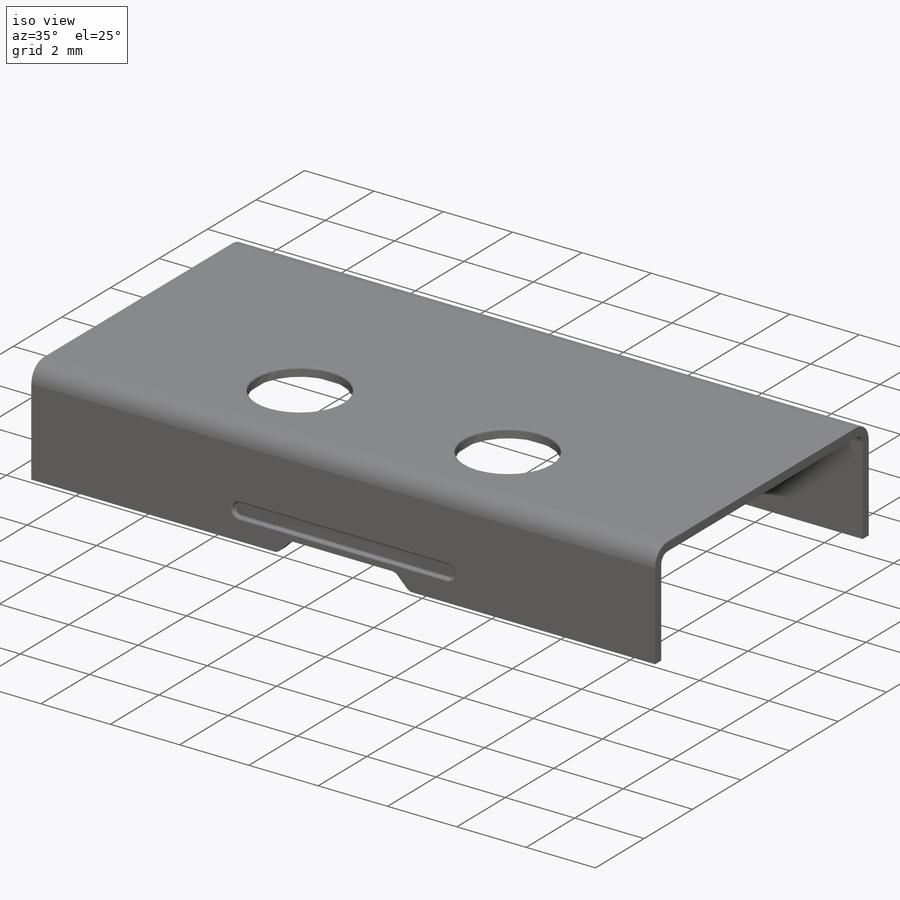
[diagram: iso view]
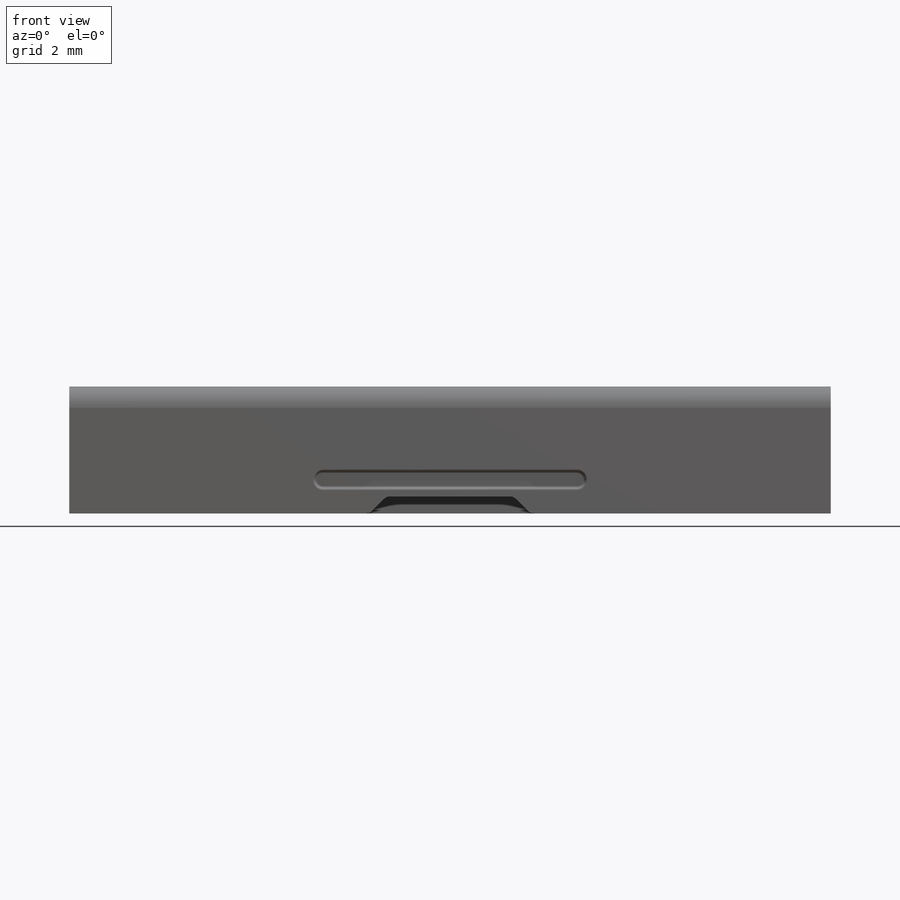
[diagram: front view]
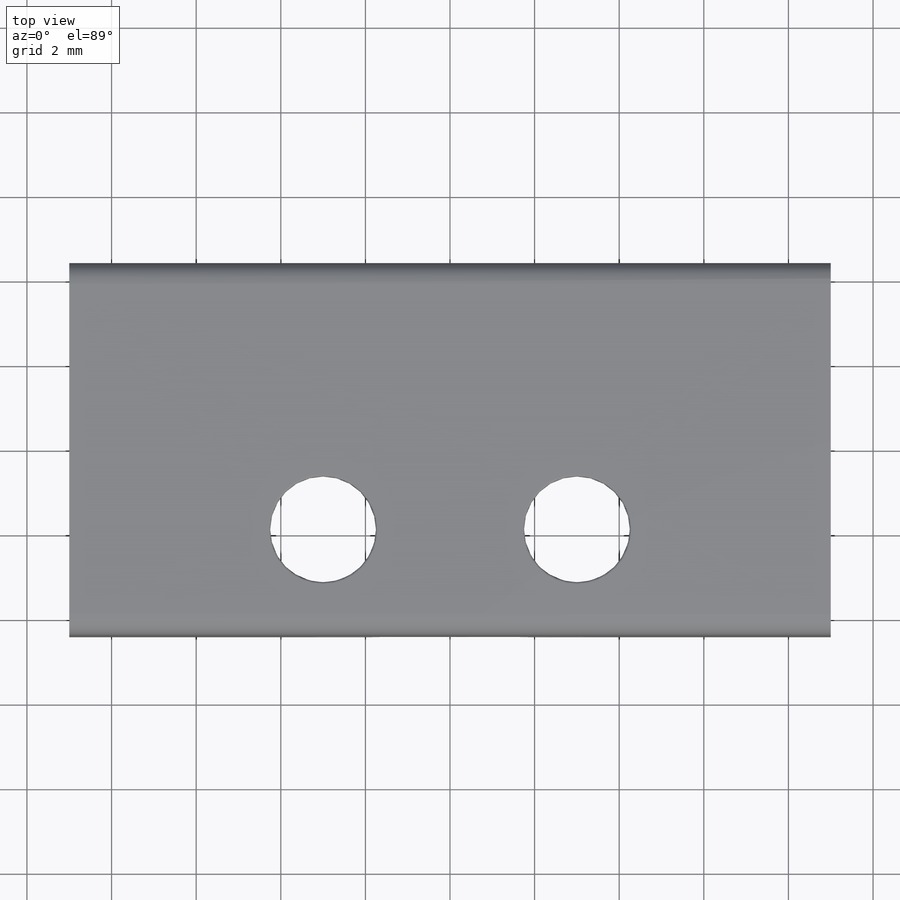
[diagram: top view]
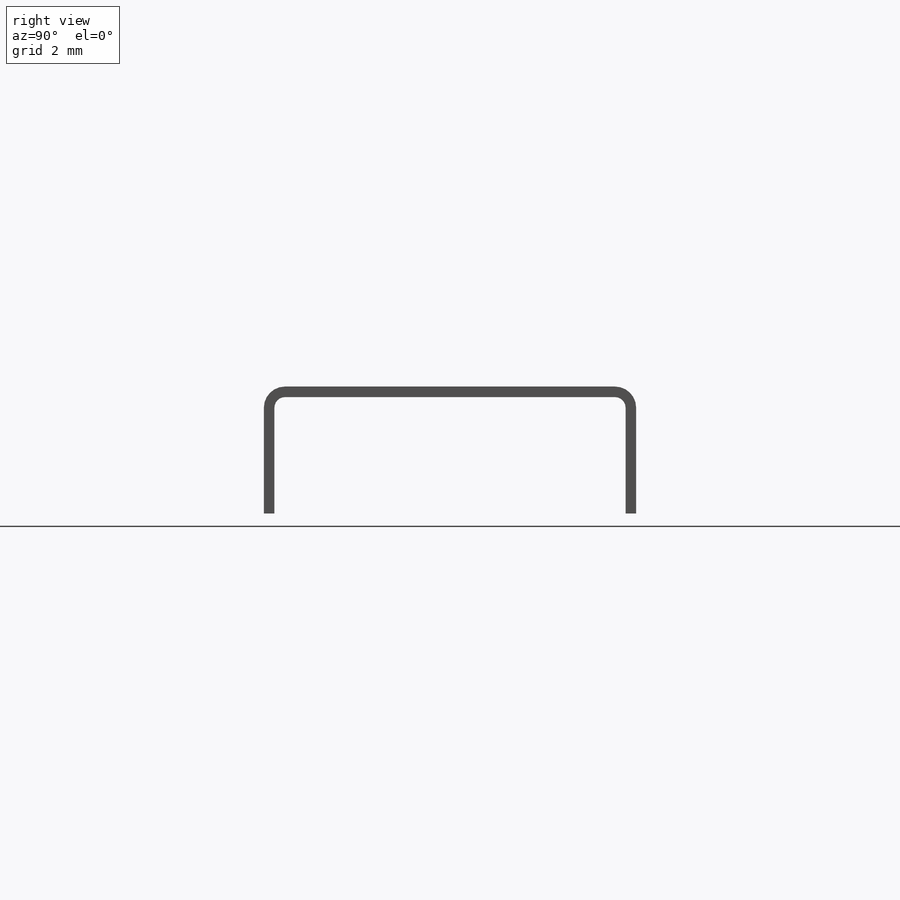
[diagram: right view]
SOLIDWORKS PART (.sldprt)
format: sldprt  version: not decoded by parser v0  size: 364,032 bytes
history: native  units: mm
features: sketch x5, cut_extrude x4, fillet x4, material x1, extrude x1, chamfer x1 (+11 scaffold rows collapsed)
feature tree (27):
  scaffold x11  (default folders/planes/origin — collapsed)
  material  "Material <not specified>"
  sketch  "Sketch1"  dims[D1=18.0mm D2=9.0mm D3=8.8mm D4=4.4mm]
  extrude  "Boss-Extrude1"  Depth=3mm
  sketch  "Sketch2"  dims[c1.D1=2.5mm c1.D2=2.5mm c1.D3=2.5mm c1.D4=2.5mm c1.D5=2.5mm c1.D6=2.5mm c2.D3=3.0mm c2.D4=3.0mm c2.D5=6.3mm c2.D6=6.3mm]
  cut_extrude  "Cut-Extrude1"  Depth=3mm
  fillet  "Fillet1"  Radius=0.5mm
  sketch  "Sketch3"  dims[D1=0.25mm]
  cut_extrude  "Cut-Extrude2"  Depth=23mm
  sketch  "Sketch4"  dims[D1=4.0mm D2=2.0mm D3=0.4mm]
  cut_extrude  "Cut-Extrude3"  Depth=2mm
  chamfer  "Chamfer1"  Distance=0.5mm Angle=45deg
  sketch  "Sketch5"  dims[D1=0.2mm D2=0.8mm D3=6.0mm D4=3.0mm]
  cut_extrude  "Cut-Extrude4"  Depth=0.1mm
  fillet  "Fillet2"  Radius=0.05mm
  fillet  "Fillet3"  Radius=0.2mm
  fillet  "Fillet4"  Radius=0.05mm
decode coverage: 15 of 15 modeling features carry decoded parameters
note: suppression state not decoded; provenance and decode notes live in map.json
